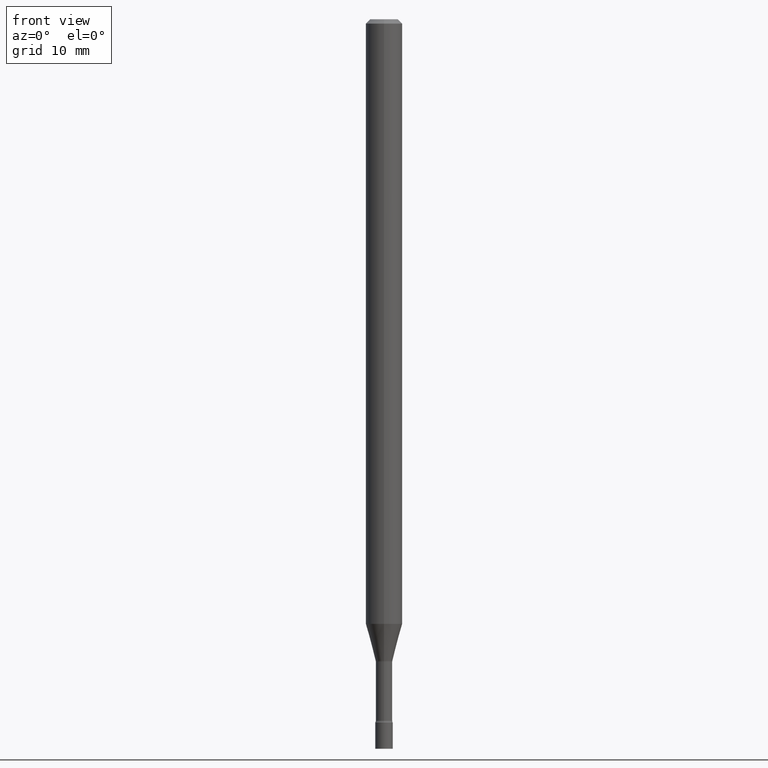
[diagram: clean part render]
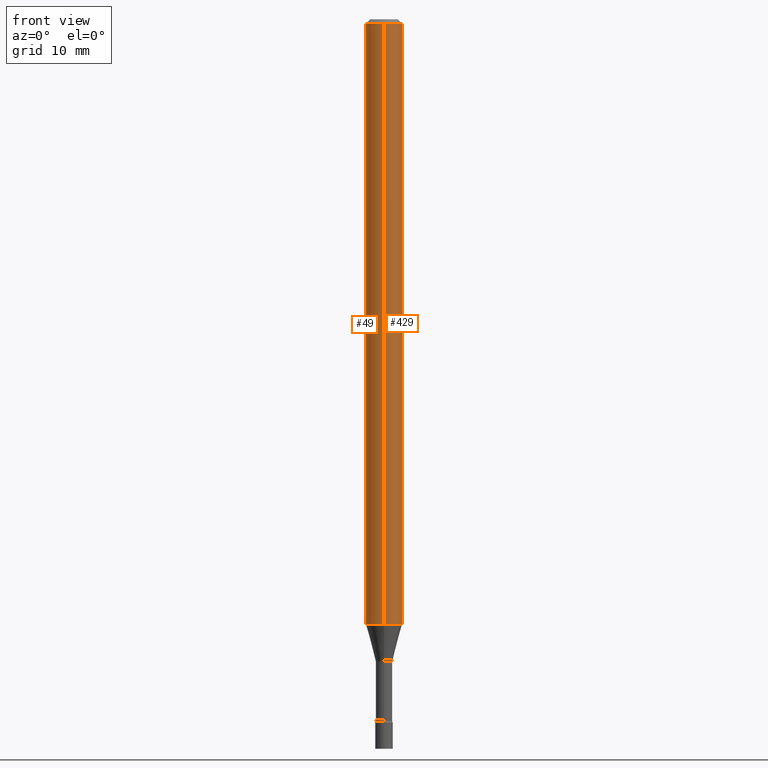
[diagram: same view with one multi-face feature highlighted, each face labeled with its STEP entity id]
A machine part, front view. The highlighted faces form ONE feature: a constant-radius fillet chain: 2 tangent blend faces with common blend radius 1.5875 mm. The faces share edges in the B-rep.
Their STEP definitions:
[1] entity #429 (Cylinder):
#5 = DIRECTION ( 'NONE',  ( -2.445511190739736583E-29, 3.491420641748579346E-15, 1.000000000000000000 ) ) ;
#24 = ORIENTED_EDGE ( 'NONE', *, *, #87, .T. ) ;
#29 = CARTESIAN_POINT ( 'NONE',  ( -4.364351673553916201E-16, -0.06250000000000000000, 2.182137901092862091E-16 ) ) ;
#31 = VECTOR ( 'NONE', #438, 39.37007874015748143 ) ;
#38 = AXIS2_PLACEMENT_3D ( 'NONE', #52, #48, #210 ) ;
#48 = DIRECTION ( 'NONE',  ( -2.445511190739736583E-29, 3.491420641748579346E-15, 1.000000000000000000 ) ) ;
#52 = CARTESIAN_POINT ( 'NONE',  ( 5.067076339536280147E-29, -7.234190950408780565E-15, -2.071990657300387895 ) ) ;
#57 = EDGE_CURVE ( 'NONE', #390, #61, #133, .T. ) ;
#59 = CARTESIAN_POINT ( 'NONE',  ( -4.364351673553912750E-16, -0.06250000000000005551, -0.01499999999999981209 ) ) ;
#61 = VERTEX_POINT ( 'NONE', #362 ) ;
#78 = DIRECTION ( 'NONE',  ( -6.982962677686265922E-15, -1.000000000000000000, 3.491420641748579346E-15 ) ) ;
#87 = EDGE_CURVE ( 'NONE', #431, #416, #258, .T. ) ;
#118 = CARTESIAN_POINT ( 'NONE',  ( 0.000000000000000000, 0.000000000000000000, 0.000000000000000000 ) ) ;
#133 = CIRCLE ( 'NONE', #436, 0.06250000000000000000 ) ;
#151 = CARTESIAN_POINT ( 'NONE',  ( -4.364351673553411330E-16, -0.06250000000000725808, -2.071990657300387451 ) ) ;
#152 = LINE ( 'NONE', #400, #31 ) ;
#158 = FACE_OUTER_BOUND ( 'NONE', #220, .T. ) ;
#161 = CYLINDRICAL_SURFACE ( 'NONE', #486, 0.06250000000000000000 ) ;
#173 = ORIENTED_EDGE ( 'NONE', *, *, #57, .F. ) ;
#177 = VECTOR ( 'NONE', #425, 39.37007874015748143 ) ;
#210 = DIRECTION ( 'NONE',  ( -6.982962677686265922E-15, -1.000000000000000000, 4.370956789862821150E-15 ) ) ;
#220 = EDGE_LOOP ( 'NONE', ( #24, #314, #173, #509 ) ) ;
#226 = LINE ( 'NONE', #29, #177 ) ;
#258 = CIRCLE ( 'NONE', #38, 0.06250000000000000000 ) ;
#265 = EDGE_CURVE ( 'NONE', #416, #61, #152, .T. ) ;
#281 = EDGE_CURVE ( 'NONE', #431, #390, #226, .T. ) ;
#287 = DIRECTION ( 'NONE',  ( -6.982962677686265922E-15, -1.000000000000000000, 3.483106191921935554E-15 ) ) ;
#314 = ORIENTED_EDGE ( 'NONE', *, *, #265, .T. ) ;
#316 = CARTESIAN_POINT ( 'NONE',  ( 4.440892098501129061E-16, 0.06249999999999273498, -2.071990657300387895 ) ) ;
#324 = DIRECTION ( 'NONE',  ( -2.445511190739736583E-29, 3.491420641748579346E-15, 1.000000000000000000 ) ) ;
#360 = CARTESIAN_POINT ( 'NONE',  ( 3.668266786109612039E-31, -5.237130962622879693E-17, -0.01500000000000003067 ) ) ;
#362 = CARTESIAN_POINT ( 'NONE',  ( 4.440892098501134977E-16, 0.06249999999999993755, -0.01500000000000024751 ) ) ;
#390 = VERTEX_POINT ( 'NONE', #59 ) ;
#400 = CARTESIAN_POINT ( 'NONE',  ( 4.440892098500625669E-16, 0.06250000000000000000, -2.182137901092862091E-16 ) ) ;
#416 = VERTEX_POINT ( 'NONE', #316 ) ;
#425 = DIRECTION ( 'NONE',  ( -2.445511190739736863E-29, 3.491420641748579346E-15, 1.000000000000000000 ) ) ;
#429 = ADVANCED_FACE ( 'NONE', ( #158 ), #161, .T. ) ;
#431 = VERTEX_POINT ( 'NONE', #151 ) ;
#436 = AXIS2_PLACEMENT_3D ( 'NONE', #360, #324, #287 ) ;
#438 = DIRECTION ( 'NONE',  ( -2.445511190739736863E-29, 3.491420641748579346E-15, 1.000000000000000000 ) ) ;
#486 = AXIS2_PLACEMENT_3D ( 'NONE', #118, #5, #78 ) ;
#509 = ORIENTED_EDGE ( 'NONE', *, *, #281, .F. ) ;
[2] entity #49 (Cylinder):
#9 = DIRECTION ( 'NONE',  ( -6.982962677686265922E-15, -1.000000000000000000, 3.483106191921935554E-15 ) ) ;
#29 = CARTESIAN_POINT ( 'NONE',  ( -4.364351673553916201E-16, -0.06250000000000000000, 2.182137901092862091E-16 ) ) ;
#31 = VECTOR ( 'NONE', #438, 39.37007874015748143 ) ;
#33 = ORIENTED_EDGE ( 'NONE', *, *, #265, .F. ) ;
#49 = ADVANCED_FACE ( 'NONE', ( #291 ), #457, .T. ) ;
#53 = CIRCLE ( 'NONE', #90, 0.06250000000000000000 ) ;
#59 = CARTESIAN_POINT ( 'NONE',  ( -4.364351673553912750E-16, -0.06250000000000005551, -0.01499999999999981209 ) ) ;
#61 = VERTEX_POINT ( 'NONE', #362 ) ;
#83 = CARTESIAN_POINT ( 'NONE',  ( 0.000000000000000000, 0.000000000000000000, 0.000000000000000000 ) ) ;
#90 = AXIS2_PLACEMENT_3D ( 'NONE', #263, #469, #9 ) ;
#95 = ORIENTED_EDGE ( 'NONE', *, *, #153, .F. ) ;
#116 = DIRECTION ( 'NONE',  ( -2.445511190739736583E-29, 3.491420641748579346E-15, 1.000000000000000000 ) ) ;
#142 = EDGE_LOOP ( 'NONE', ( #33, #271, #224, #95 ) ) ;
#151 = CARTESIAN_POINT ( 'NONE',  ( -4.364351673553411330E-16, -0.06250000000000725808, -2.071990657300387451 ) ) ;
#152 = LINE ( 'NONE', #400, #31 ) ;
#153 = EDGE_CURVE ( 'NONE', #61, #390, #53, .T. ) ;
#177 = VECTOR ( 'NONE', #425, 39.37007874015748143 ) ;
#216 = DIRECTION ( 'NONE',  ( -6.982962677686265922E-15, -1.000000000000000000, 3.491420641748579346E-15 ) ) ;
#224 = ORIENTED_EDGE ( 'NONE', *, *, #281, .T. ) ;
#226 = LINE ( 'NONE', #29, #177 ) ;
#236 = CIRCLE ( 'NONE', #297, 0.06250000000000000000 ) ;
#263 = CARTESIAN_POINT ( 'NONE',  ( 3.668266786109612039E-31, -5.237130962622879693E-17, -0.01500000000000003067 ) ) ;
#265 = EDGE_CURVE ( 'NONE', #416, #61, #152, .T. ) ;
#271 = ORIENTED_EDGE ( 'NONE', *, *, #367, .T. ) ;
#281 = EDGE_CURVE ( 'NONE', #431, #390, #226, .T. ) ;
#291 = FACE_OUTER_BOUND ( 'NONE', #142, .T. ) ;
#297 = AXIS2_PLACEMENT_3D ( 'NONE', #309, #116, #402 ) ;
#309 = CARTESIAN_POINT ( 'NONE',  ( 5.067076339536280147E-29, -7.234190950408780565E-15, -2.071990657300387895 ) ) ;
#316 = CARTESIAN_POINT ( 'NONE',  ( 4.440892098501129061E-16, 0.06249999999999273498, -2.071990657300387895 ) ) ;
#328 = DIRECTION ( 'NONE',  ( -2.445511190739736583E-29, 3.491420641748579346E-15, 1.000000000000000000 ) ) ;
#357 = AXIS2_PLACEMENT_3D ( 'NONE', #83, #328, #216 ) ;
#362 = CARTESIAN_POINT ( 'NONE',  ( 4.440892098501134977E-16, 0.06249999999999993755, -0.01500000000000024751 ) ) ;
#367 = EDGE_CURVE ( 'NONE', #416, #431, #236, .T. ) ;
#390 = VERTEX_POINT ( 'NONE', #59 ) ;
#400 = CARTESIAN_POINT ( 'NONE',  ( 4.440892098500625669E-16, 0.06250000000000000000, -2.182137901092862091E-16 ) ) ;
#402 = DIRECTION ( 'NONE',  ( -6.982962677686265922E-15, -1.000000000000000000, 4.370956789862821150E-15 ) ) ;
#416 = VERTEX_POINT ( 'NONE', #316 ) ;
#425 = DIRECTION ( 'NONE',  ( -2.445511190739736863E-29, 3.491420641748579346E-15, 1.000000000000000000 ) ) ;
#431 = VERTEX_POINT ( 'NONE', #151 ) ;
#438 = DIRECTION ( 'NONE',  ( -2.445511190739736863E-29, 3.491420641748579346E-15, 1.000000000000000000 ) ) ;
#457 = CYLINDRICAL_SURFACE ( 'NONE', #357, 0.06250000000000000000 ) ;
#469 = DIRECTION ( 'NONE',  ( -2.445511190739736583E-29, 3.491420641748579346E-15, 1.000000000000000000 ) ) ;